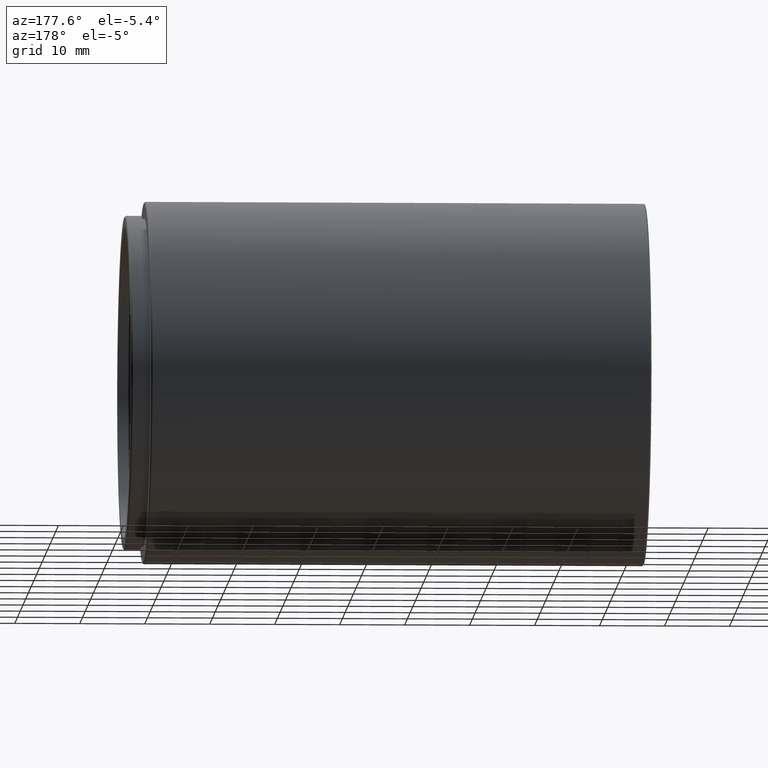
[diagram: clean part render]
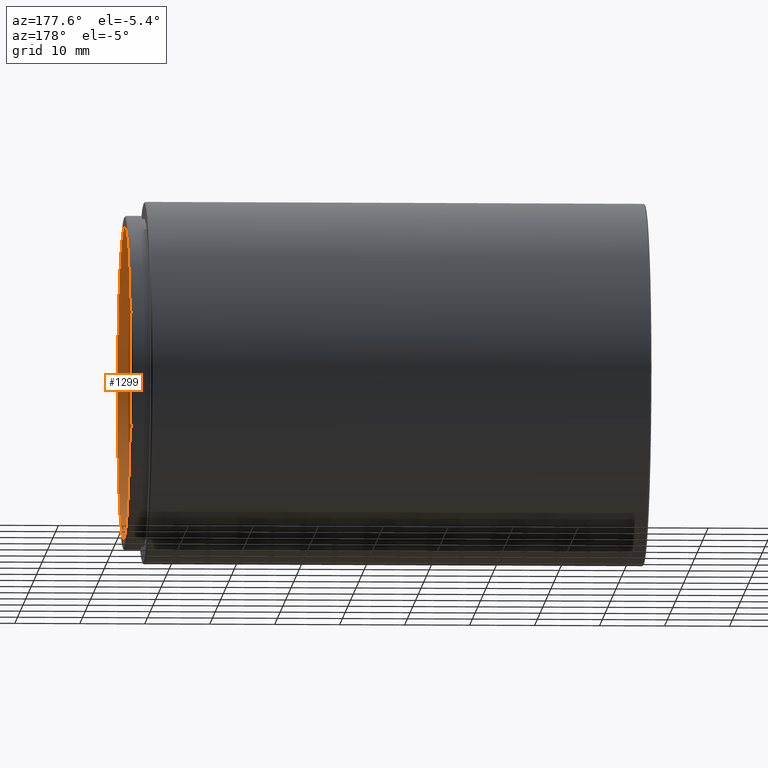
[diagram: same view with one face highlighted and labeled with its STEP entity id]
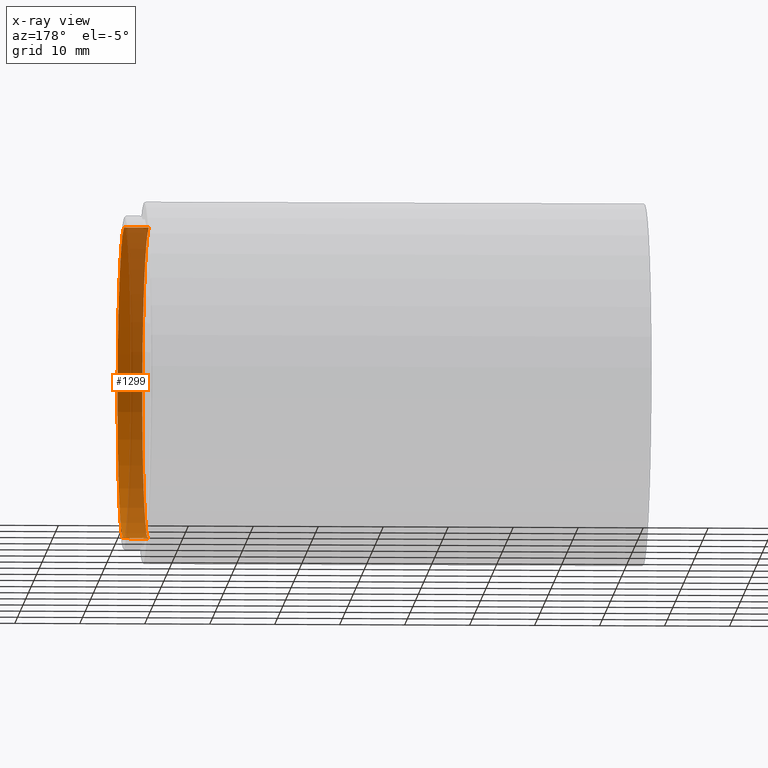
[diagram: x-ray of the same camera — body ghosted, the highlighted face saturated]
A machine part, auxiliary view. The second image highlights one B-rep face of the part: STEP entity #1299.
The next image is the same camera in x-ray: the body ghosted, the highlighted face saturated — about 58% of this face is hidden behind the body in this view.
In plain terms, the highlighted cylindrical surface (partial cylindrical patch) has radius 24 mm, axis along (1, -0, -0).
Its self-contained STEP definition (entity closure, byte-faithful):
#2 = DIRECTION ( 'NONE',  ( 1.000000000000000000, 0.000000000000000000, 0.000000000000000000 ) ) ;
#12 = DIRECTION ( 'NONE',  ( 1.000000000000000000, -0.000000000000000000, -0.000000000000000000 ) ) ;
#36 = EDGE_CURVE ( 'NONE', #267, #1410, #970, .T. ) ;
#92 = ORIENTED_EDGE ( 'NONE', *, *, #992, .F. ) ;
#191 = FACE_OUTER_BOUND ( 'NONE', #1274, .T. ) ;
#213 = CARTESIAN_POINT ( 'NONE',  ( 6.525999999999982926, -20.10857142857141611, 24.00000000000000355 ) ) ;
#260 = CIRCLE ( 'NONE', #987, 24.00000000000000355 ) ;
#267 = VERTEX_POINT ( 'NONE', #541 ) ;
#336 = AXIS2_PLACEMENT_3D ( 'NONE', #1335, #2, #1580 ) ;
#409 = VECTOR ( 'NONE', #556, 1000.000000000000000 ) ;
#442 = ORIENTED_EDGE ( 'NONE', *, *, #36, .T. ) ;
#493 = CARTESIAN_POINT ( 'NONE',  ( -73.47400000000001796, -20.10857142857141966, -24.00000000000000355 ) ) ;
#541 = CARTESIAN_POINT ( 'NONE',  ( 2.725999999999982659, -20.10857142857141611, 24.00000000000000355 ) ) ;
#556 = DIRECTION ( 'NONE',  ( 1.000000000000000000, -0.000000000000000000, -0.000000000000000000 ) ) ;
#601 = DIRECTION ( 'NONE',  ( 1.000000000000000000, 0.000000000000000000, 0.000000000000000000 ) ) ;
#626 = ORIENTED_EDGE ( 'NONE', *, *, #1486, .F. ) ;
#678 = VERTEX_POINT ( 'NONE', #1131 ) ;
#701 = CIRCLE ( 'NONE', #336, 24.00000000000000355 ) ;
#794 = AXIS2_PLACEMENT_3D ( 'NONE', #1457, #868, #850 ) ;
#832 = LINE ( 'NONE', #493, #981 ) ;
#850 = DIRECTION ( 'NONE',  ( 0.000000000000000000, 0.000000000000000000, -1.000000000000000000 ) ) ;
#868 = DIRECTION ( 'NONE',  ( 1.000000000000000000, -0.000000000000000000, -0.000000000000000000 ) ) ;
#970 = LINE ( 'NONE', #1167, #409 ) ;
#977 = CYLINDRICAL_SURFACE ( 'NONE', #794, 24.00000000000000355 ) ;
#981 = VECTOR ( 'NONE', #12, 1000.000000000000000 ) ;
#987 = AXIS2_PLACEMENT_3D ( 'NONE', #1333, #601, #1467 ) ;
#992 = EDGE_CURVE ( 'NONE', #1484, #678, #832, .T. ) ;
#1106 = CARTESIAN_POINT ( 'NONE',  ( 2.725999999999982659, -20.10857142857141966, -24.00000000000000355 ) ) ;
#1131 = CARTESIAN_POINT ( 'NONE',  ( 6.525999999999982926, -20.10857142857141966, -24.00000000000000355 ) ) ;
#1167 = CARTESIAN_POINT ( 'NONE',  ( -73.47400000000001796, -20.10857142857141611, 24.00000000000000355 ) ) ;
#1274 = EDGE_LOOP ( 'NONE', ( #626, #442, #1404, #92 ) ) ;
#1291 = EDGE_CURVE ( 'NONE', #1410, #678, #701, .T. ) ;
#1299 = ADVANCED_FACE ( 'NONE', ( #191 ), #977, .F. ) ;
#1333 = CARTESIAN_POINT ( 'NONE',  ( 2.725999999999982659, -20.10857142857141966, 0.000000000000000000 ) ) ;
#1335 = CARTESIAN_POINT ( 'NONE',  ( 6.525999999999982926, -20.10857142857141966, 0.000000000000000000 ) ) ;
#1404 = ORIENTED_EDGE ( 'NONE', *, *, #1291, .T. ) ;
#1410 = VERTEX_POINT ( 'NONE', #213 ) ;
#1457 = CARTESIAN_POINT ( 'NONE',  ( -73.47400000000001796, -20.10857142857141966, 0.000000000000000000 ) ) ;
#1467 = DIRECTION ( 'NONE',  ( 0.000000000000000000, 0.000000000000000000, -1.000000000000000000 ) ) ;
#1484 = VERTEX_POINT ( 'NONE', #1106 ) ;
#1486 = EDGE_CURVE ( 'NONE', #267, #1484, #260, .T. ) ;
#1580 = DIRECTION ( 'NONE',  ( 0.000000000000000000, 0.000000000000000000, -1.000000000000000000 ) ) ;